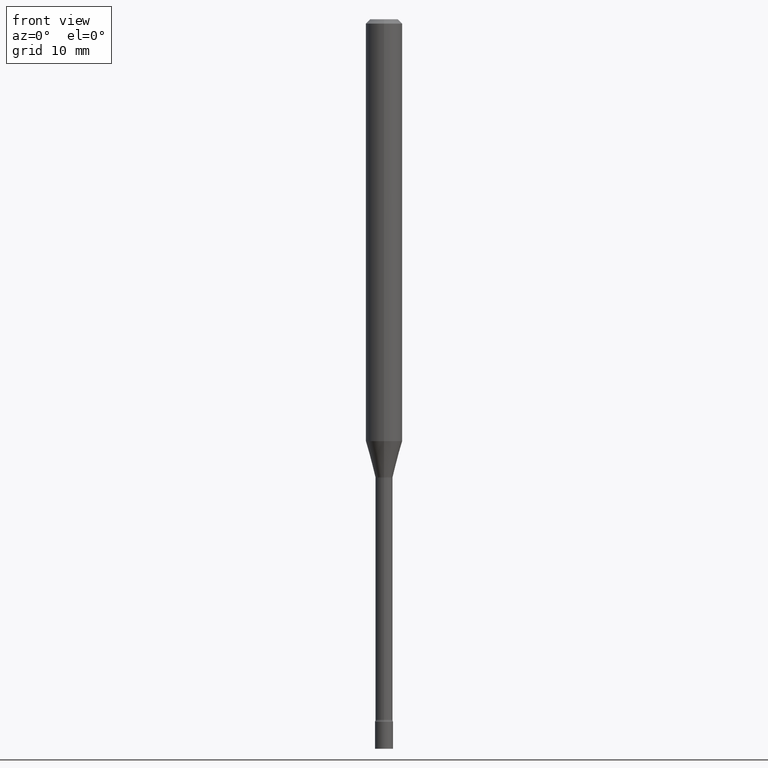
[diagram: clean part render]
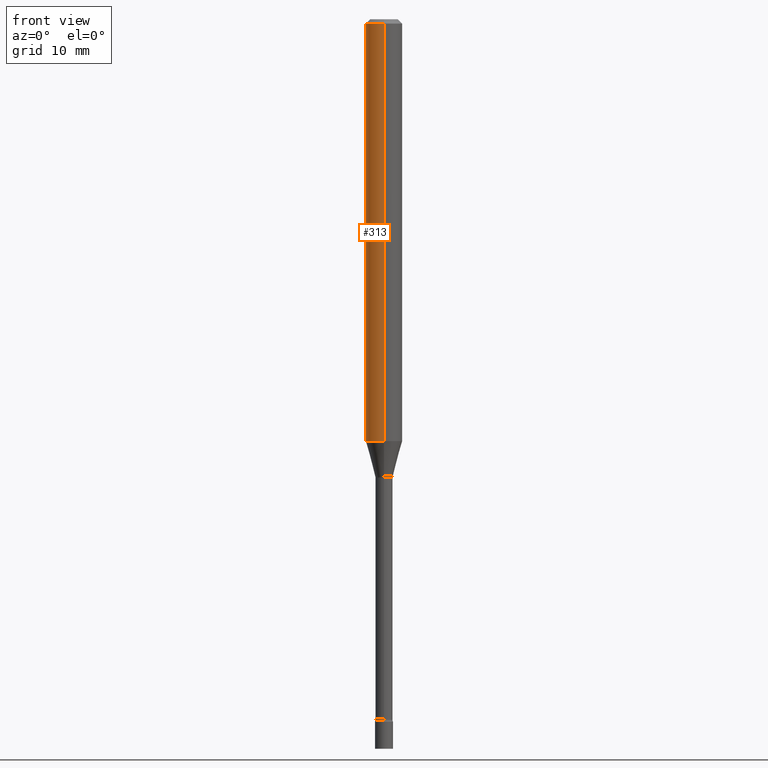
[diagram: same view with one face highlighted and labeled with its STEP entity id]
A machine part, front view. The second image highlights one B-rep face of the part: STEP entity #313.
In plain terms, the highlighted cylindrical surface (edge-blend (fillet) strip) has radius 1.5875 mm, axis along (-0, 0, 1).
Its self-contained STEP definition (entity closure, byte-faithful):
#7 = AXIS2_PLACEMENT_3D ( 'NONE', #51, #12, #211 ) ;
#12 = DIRECTION ( 'NONE',  ( -2.445453013056340806E-29, 3.491503955502470193E-15, 1.000000000000000000 ) ) ;
#23 = ORIENTED_EDGE ( 'NONE', *, *, #393, .T. ) ;
#35 = DIRECTION ( 'NONE',  ( -6.982962677686265922E-15, -1.000000000000000000, 3.483106191921935554E-15 ) ) ;
#39 = EDGE_CURVE ( 'NONE', #119, #239, #245, .T. ) ;
#48 = DIRECTION ( 'NONE',  ( -2.445453013056340806E-29, 3.491503955502470193E-15, 1.000000000000000000 ) ) ;
#51 = CARTESIAN_POINT ( 'NONE',  ( 0.000000000000000000, 0.000000000000000000, 0.000000000000000000 ) ) ;
#58 = VECTOR ( 'NONE', #502, 39.37007874015748143 ) ;
#60 = ORIENTED_EDGE ( 'NONE', *, *, #257, .F. ) ;
#72 = DIRECTION ( 'NONE',  ( -2.445453013056340806E-29, 3.491503955502470193E-15, 1.000000000000000000 ) ) ;
#89 = CARTESIAN_POINT ( 'NONE',  ( 3.534990624841963058E-29, -5.047095030410835227E-15, -1.445536105567578167 ) ) ;
#95 = DIRECTION ( 'NONE',  ( -2.445453013056340806E-29, 3.491503955502470193E-15, 1.000000000000000000 ) ) ;
#105 = CARTESIAN_POINT ( 'NONE',  ( 3.668179519584518216E-31, -5.237255933253716063E-17, -0.01500000000000003067 ) ) ;
#119 = VERTEX_POINT ( 'NONE', #386 ) ;
#121 = CARTESIAN_POINT ( 'NONE',  ( 4.440892098500977205E-16, 0.06249999999999492073, -1.445536105567578389 ) ) ;
#124 = LINE ( 'NONE', #412, #306 ) ;
#147 = VERTEX_POINT ( 'NONE', #482 ) ;
#211 = DIRECTION ( 'NONE',  ( -6.982962677686265922E-15, -1.000000000000000000, 3.491503955502470193E-15 ) ) ;
#239 = VERTEX_POINT ( 'NONE', #326 ) ;
#245 = CIRCLE ( 'NONE', #380, 0.06250000000000000000 ) ;
#249 = LINE ( 'NONE', #345, #58 ) ;
#254 = FACE_OUTER_BOUND ( 'NONE', #264, .T. ) ;
#257 = EDGE_CURVE ( 'NONE', #474, #119, #124, .T. ) ;
#264 = EDGE_LOOP ( 'NONE', ( #60, #465, #23, #347 ) ) ;
#284 = EDGE_CURVE ( 'NONE', #474, #147, #409, .T. ) ;
#306 = VECTOR ( 'NONE', #48, 39.37007874015748143 ) ;
#313 = ADVANCED_FACE ( 'NONE', ( #254 ), #452, .T. ) ;
#326 = CARTESIAN_POINT ( 'NONE',  ( -4.364351673553912750E-16, -0.06250000000000005551, -0.01499999999999981209 ) ) ;
#345 = CARTESIAN_POINT ( 'NONE',  ( -4.364351673553916201E-16, -0.06250000000000000000, 2.182189972189043871E-16 ) ) ;
#347 = ORIENTED_EDGE ( 'NONE', *, *, #39, .F. ) ;
#380 = AXIS2_PLACEMENT_3D ( 'NONE', #105, #72, #35 ) ;
#386 = CARTESIAN_POINT ( 'NONE',  ( 4.440892098500982135E-16, 0.06249999999999995837, -0.01500000000000024751 ) ) ;
#387 = DIRECTION ( 'NONE',  ( -6.982962677686265922E-15, -1.000000000000000000, 4.370956789862821150E-15 ) ) ;
#393 = EDGE_CURVE ( 'NONE', #147, #239, #249, .T. ) ;
#409 = CIRCLE ( 'NONE', #455, 0.06250000000000000000 ) ;
#412 = CARTESIAN_POINT ( 'NONE',  ( 4.440892098500625669E-16, 0.06250000000000000000, -2.182189972189043871E-16 ) ) ;
#452 = CYLINDRICAL_SURFACE ( 'NONE', #7, 0.06250000000000000000 ) ;
#455 = AXIS2_PLACEMENT_3D ( 'NONE', #89, #95, #387 ) ;
#465 = ORIENTED_EDGE ( 'NONE', *, *, #284, .T. ) ;
#474 = VERTEX_POINT ( 'NONE', #121 ) ;
#482 = CARTESIAN_POINT ( 'NONE',  ( -4.364351673553564172E-16, -0.06250000000000507927, -1.445536105567577945 ) ) ;
#502 = DIRECTION ( 'NONE',  ( -2.445453013056340806E-29, 3.491503955502470193E-15, 1.000000000000000000 ) ) ;